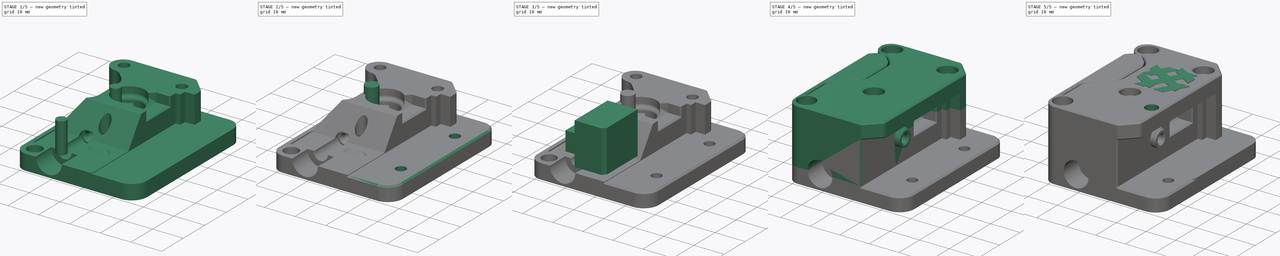
[diagram: build sequence overview — one tinted view per stage of 5, left to right]
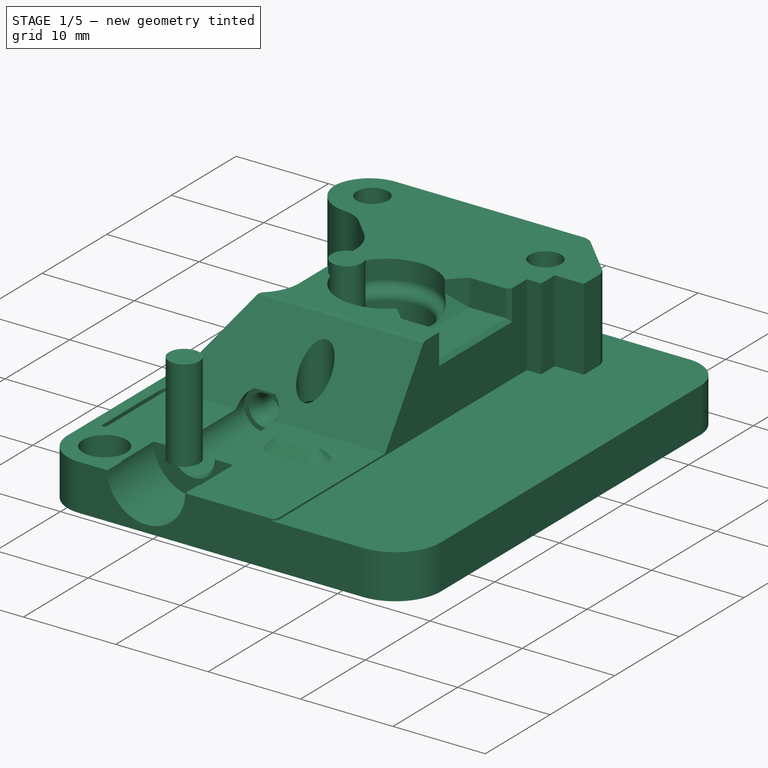
[diagram: stage 1 of 5 — iso view after this stage's code; geometry added in this stage tinted green]
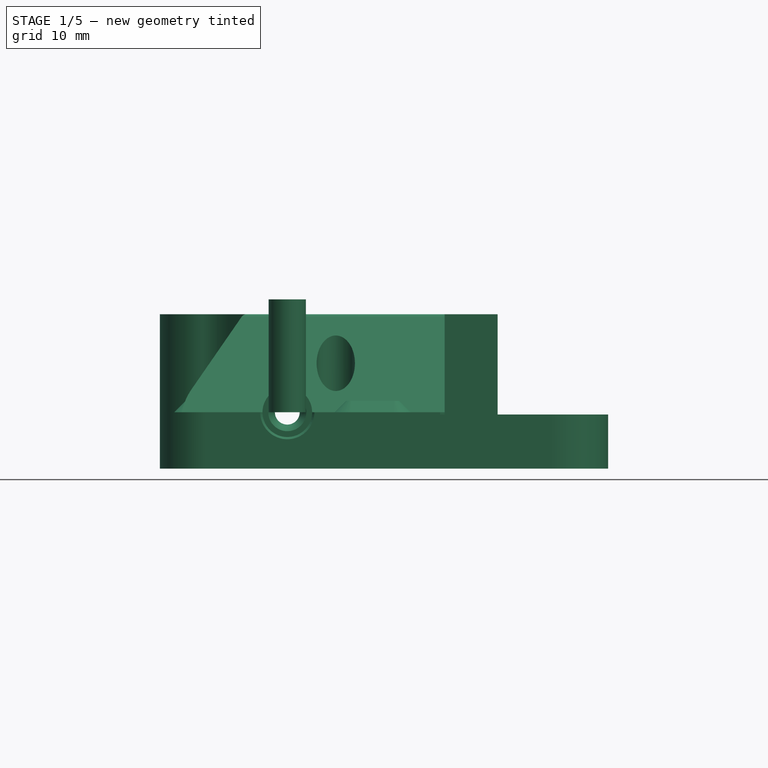
[diagram: stage 1 of 5 — front view after this stage's code; geometry added in this stage tinted green]
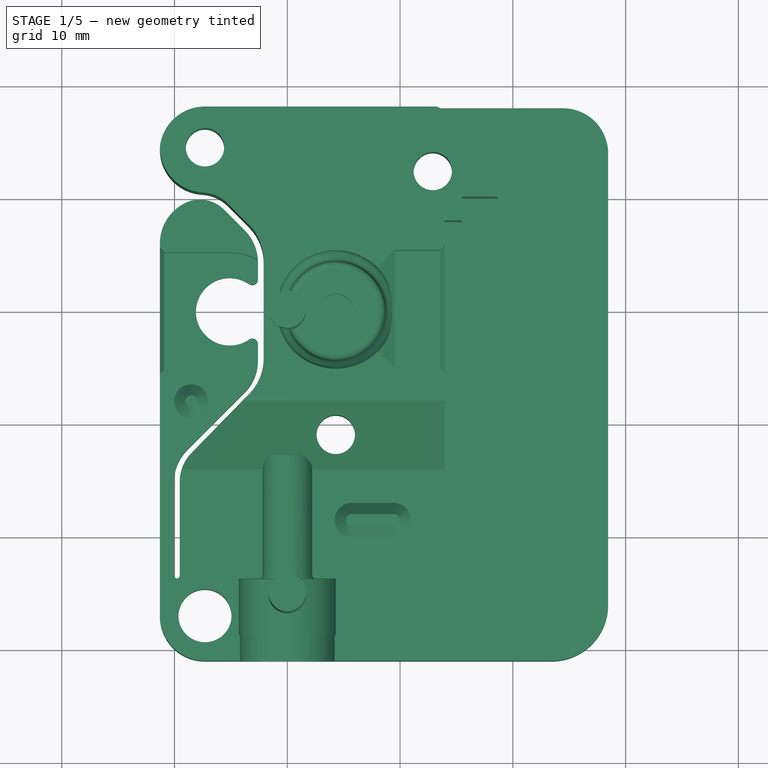
[diagram: stage 1 of 5 — top view after this stage's code; geometry added in this stage tinted green]
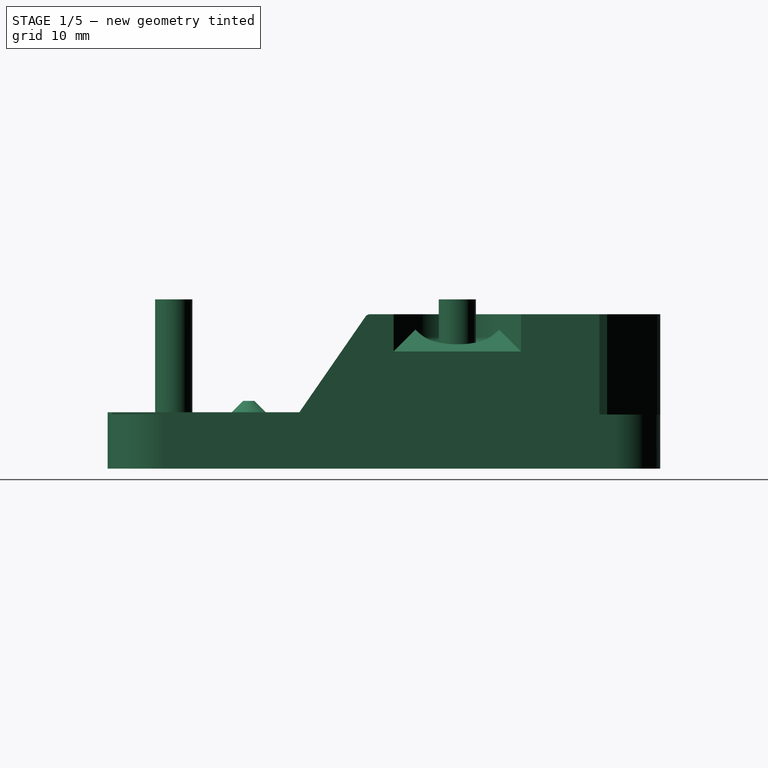
[diagram: stage 1 of 5 — right view after this stage's code; geometry added in this stage tinted green]
FCSTD DOCUMENT  (FreeCAD 2023.1102R14555 (Git shallow))
Label: ERCF_sensor_faceRemoved_safetysave
License: All rights reserved
objects: Part::Feature×21, App::Part×19, App::Link×11, Part::Chamfer×5, Sketcher::SketchObject×4, Part::Cylinder×4, Part::FeaturePython×3, Part::Cut×3, PartDesign::Pad×2, Part::Box×2, Part::Refine×2, Part::Extrusion×2, Part::MultiFuse×2, App::DocumentObjectGroup×1, Part::SubShapeBinder×1, PartDesign::Body×1, Part::Fuse×1, Part::Fillet×1
note: 62 computed .brp shape members not serialized (recipe doc carries the construction recipe); baked Part::Feature solids carry a one-line shape summary decoded from their .brp

FEATURE [Part::Feature] Defeatured
  InvalidShape = false
  TreeRank = 350
  ValidateShape = false
FEATURE [Part::Feature] Defeatured001
  InvalidShape = false
  TreeRank = 351
  ValidateShape = false
FEATURE [Part::Feature] Defeatured002
  InvalidShape = false
  TreeRank = 352
  ValidateShape = false
FEATURE [Part::Feature] Defeatured003
  InvalidShape = false
  TreeRank = 353
  ValidateShape = false
FEATURE [Part::Box] Box001  label="Cube001"
  AttacherType = Attacher::AttachEngine3D
  Height = 4.8
  InvalidShape = false
  Length = 10
  Placement = pos=(18.45,-31,-5) rot=(0,0,1;0rad)
  TreeRank = 354
  ValidateShape = false
  Width = 16
FEATURE [Part::Feature] Defeatured004
  InvalidShape = false
  TreeRank = 355
  ValidateShape = false
FEATURE [Part::MultiFuse] Fusion001
  InvalidShape = false
  Refine = true
  Shapes = -> [Defeatured004,Box001]
  TreeRank = 356
  ValidateShape = false
FEATURE [Part::Fillet] Fillet
  Base = -> Fusion001
  EdgeLinks = -> Fusion001 [Edge337]
  Edges = 1 edges r=5: [Edge337]
  InvalidShape = false
  TreeRank = 357
  ValidateShape = false
FEATURE [Part::Cylinder] Cylinder
  Angle = 360
  AttacherType = Attacher::AttachEngine3D
  FirstAngle = 0
  Height = 10
  InvalidShape = false
  Radius = 1.65
  SecondAngle = 0
  TreeRank = 358
  ValidateShape = false
FEATURE [Part::Cylinder] Cylinder001
  Angle = 360
  AttacherType = Attacher::AttachEngine3D
  FirstAngle = 0
  Height = 10
  InvalidShape = false
  Placement = pos=(0,-25.14,0) rot=(0,0,1;0rad)
  Radius = 1.65
  SecondAngle = 0
  TreeRank = 362
  ValidateShape = false
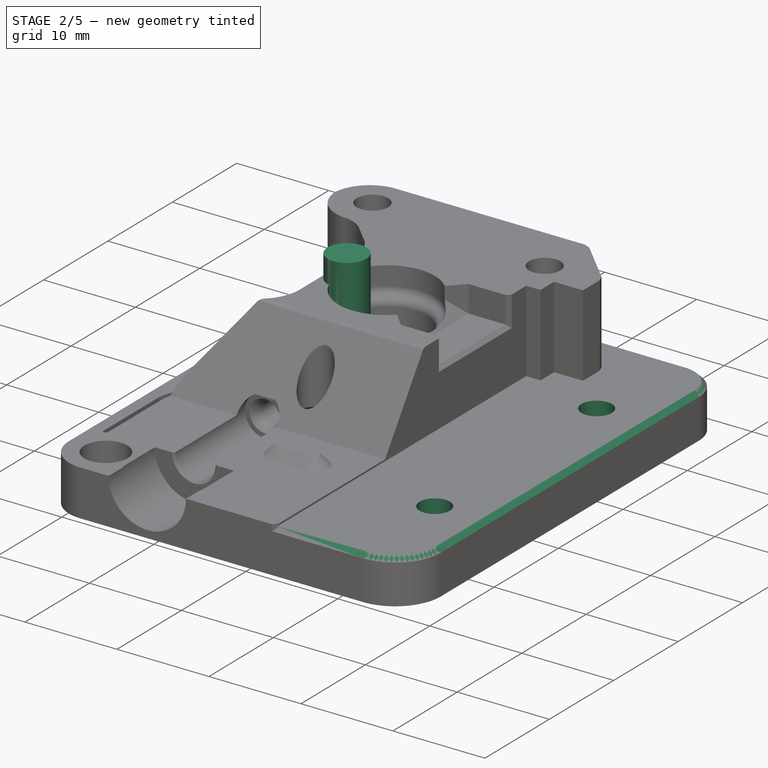
[diagram: stage 2 of 5 — iso view after this stage's code; geometry added in this stage tinted green]
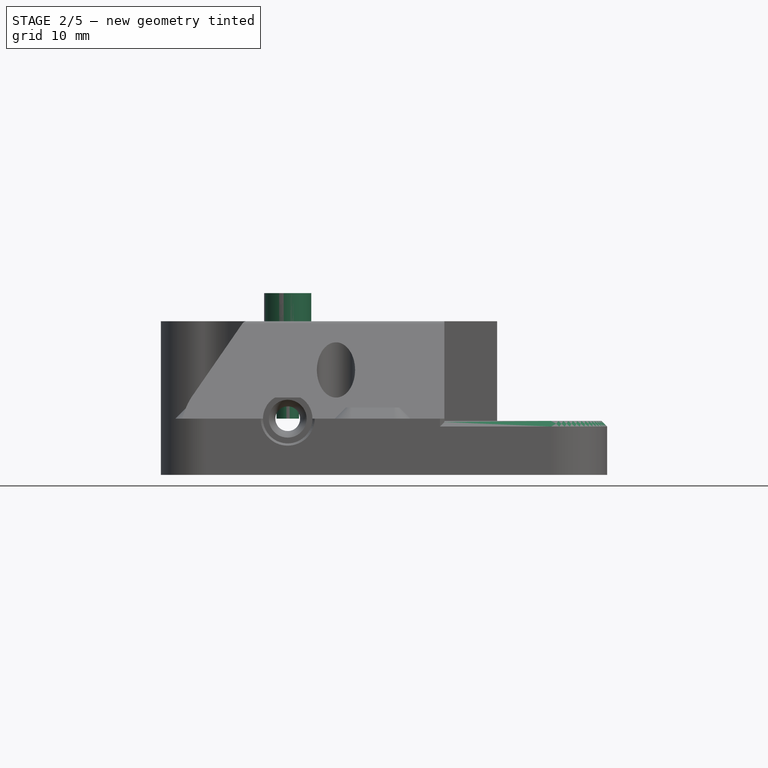
[diagram: stage 2 of 5 — front view after this stage's code; geometry added in this stage tinted green]
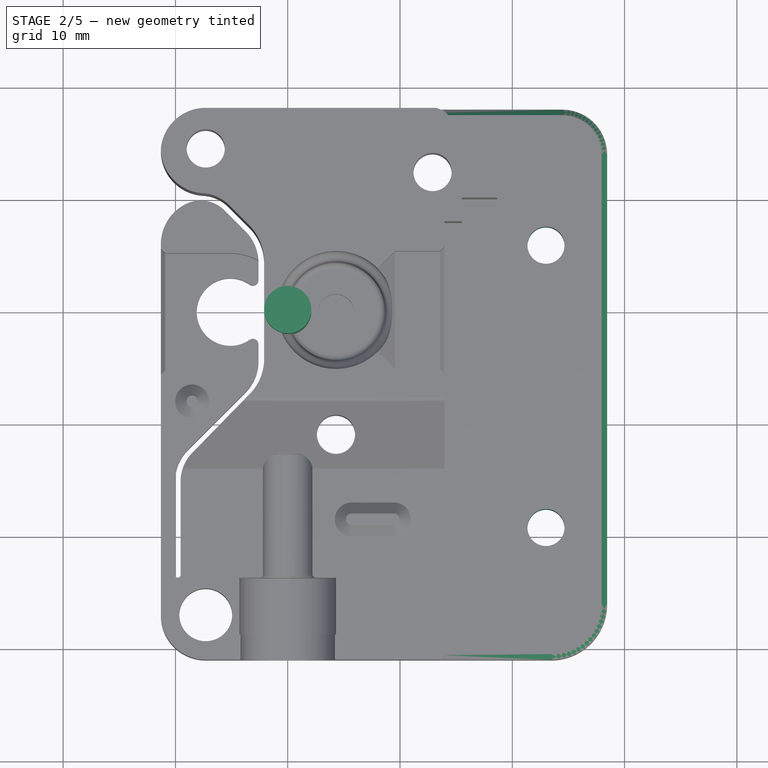
[diagram: stage 2 of 5 — top view after this stage's code; geometry added in this stage tinted green]
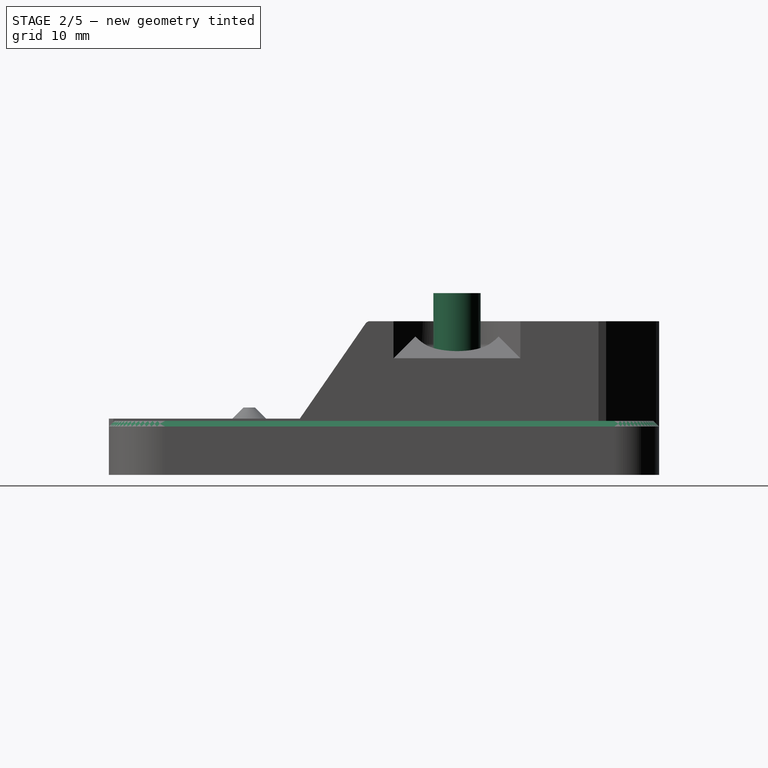
[diagram: stage 2 of 5 — right view after this stage's code; geometry added in this stage tinted green]
FEATURE [App::Part] Part017
  ClaimAllChildren = false
  ExportMode = 1
  Group = -> [Cylinder,Cylinder001]
  Origin = -> Origin018
  Placement = pos=(23,5.92,-7.03) rot=(0,0,1;0rad)
  TreeRank = 361
  _ExportChildren = -> [Cylinder,Cylinder001]
  _GroupVersion = 1
FEATURE [Part::Cut] Cut002  label="Cut003"
  Base = -> Fillet
  InvalidShape = false
  Tool = -> Part017
  TreeRank = 363
  ValidateShape = false
FEATURE [Part::Chamfer] Chamfer001  label="Printability"
  Base = -> Cut002
  EdgeLinks = -> Cut002 [Edge308,Edge310]
  Edges = 2 edges r=0.6: [Edge308,Edge310]
  InvalidShape = false
  TreeRank = 393
  ValidateShape = false
FEATURE [Part::Cylinder] Cylinder003
  Angle = 360
  AttacherType = Attacher::AttachEngine3D
  FirstAngle = 0
  Height = 10
  InvalidShape = false
  Radius = 1
  SecondAngle = 0
  TreeRank = 384
  ValidateShape = false
FEATURE [Part::Cylinder] Cylinder004
  Angle = 360
  AttacherType = Attacher::AttachEngine3D
  FirstAngle = 0
  Height = 10
  InvalidShape = false
  Placement = pos=(0,0,1.177) rot=(0,0,1;0rad)
  Radius = 2.1
  SecondAngle = 0
  TreeRank = 386
  ValidateShape = false
FEATURE [Part::Chamfer] Chamfer002
  Base = -> Chamfer001
  EdgeLinks = -> Chamfer001 [Edge37,Edge106,Edge107,Edge109,Edge110]
  Edges = 5 edges r=0.5: [Edge37,Edge106,Edge107,Edge109,Edge110]
  InvalidShape = false
  TreeRank = 394
  ValidateShape = false
FEATURE [Part::Feature] Defeatured005
  InvalidShape = false
  TreeRank = 397
  ValidateShape = false
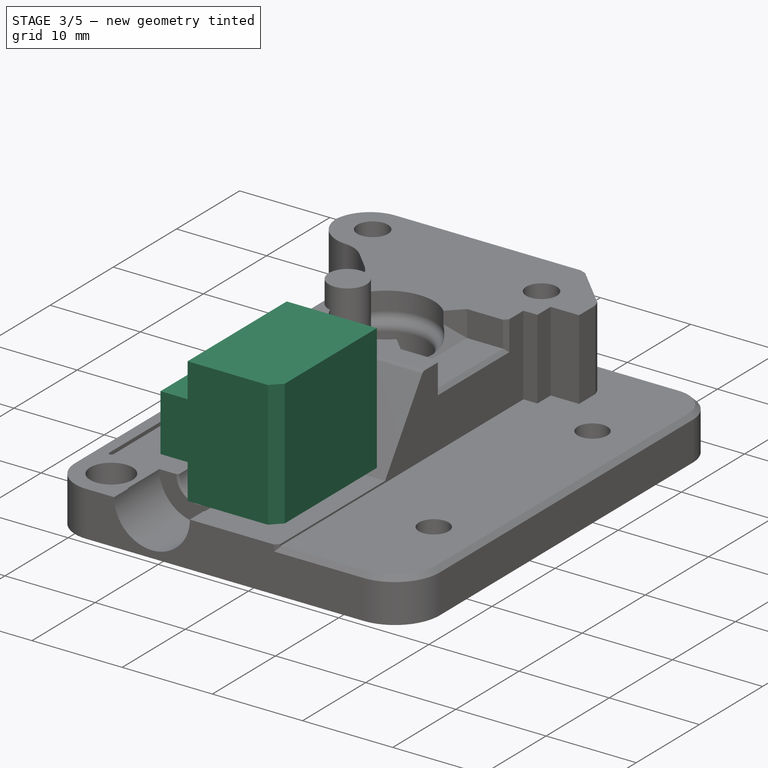
[diagram: stage 3 of 5 — iso view after this stage's code; geometry added in this stage tinted green]
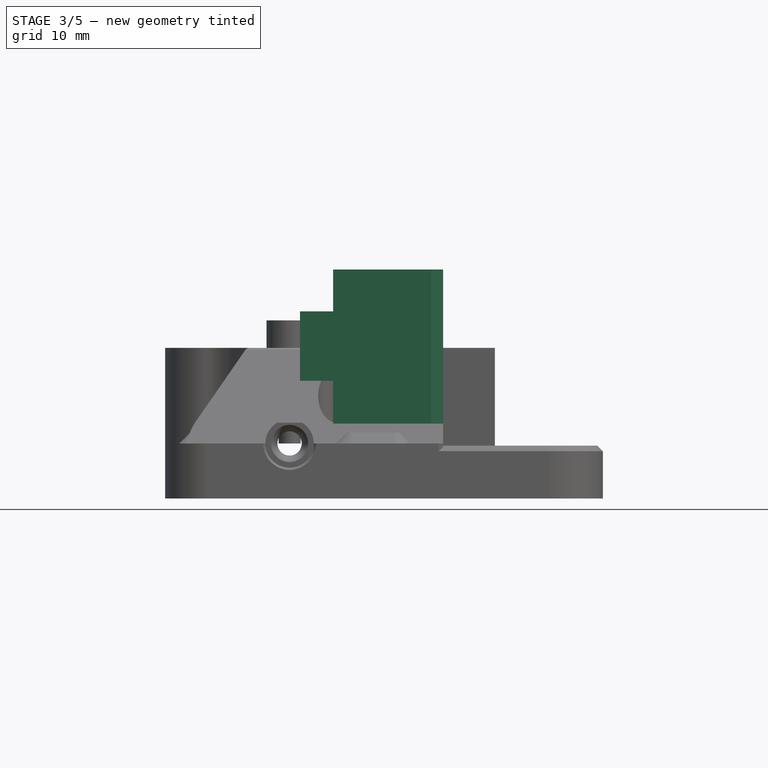
[diagram: stage 3 of 5 — front view after this stage's code; geometry added in this stage tinted green]
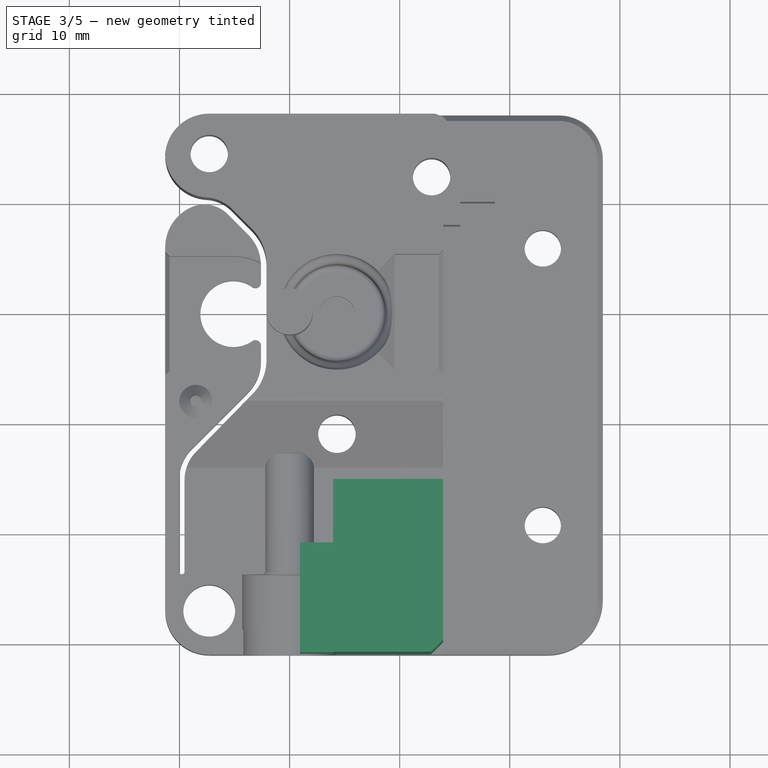
[diagram: stage 3 of 5 — top view after this stage's code; geometry added in this stage tinted green]
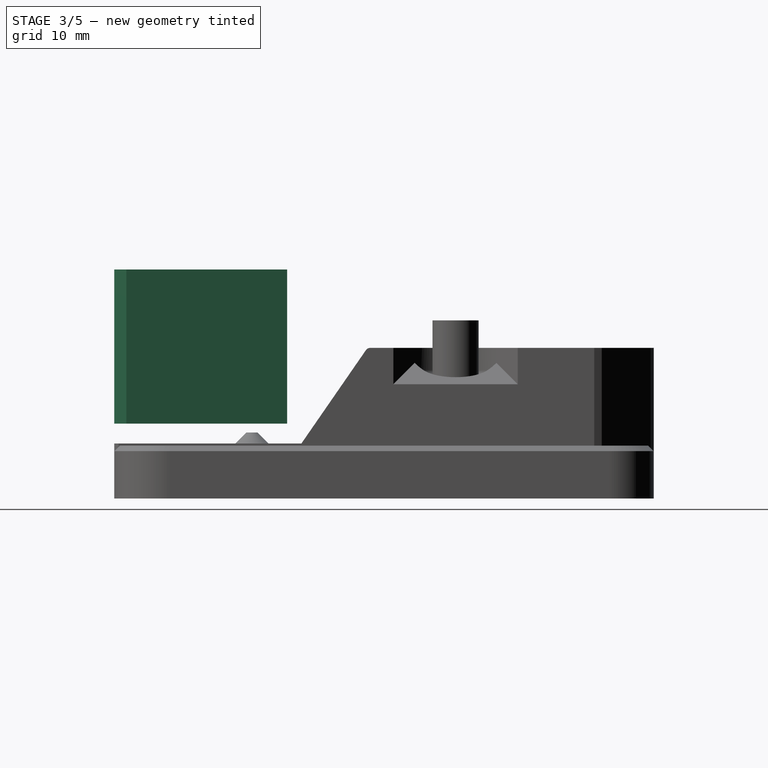
[diagram: stage 3 of 5 — right view after this stage's code; geometry added in this stage tinted green]
FEATURE [Part::SubShapeBinder] Import  label="Import(COMPOUND.1)"
  BindCopyOnChange = 0
  BindMode = 0
  ClaimChildren = false
  Context = -> Body [Import.]
  EdgeTolerance = 1e-06
  FillStyle = 0
  Fuse = false
  InvalidShape = false
  MakeFace = false
  MergeEdges = true
  OffsetFill = false
  OffsetIntersection = false
  OffsetJoinType = 0
  OffsetOpenResult = false
  Outline = false
  PartialLoad = false
  Relative = true
  SplitEdges = false
  Support = -> [Compound002_child1]
  TightBound = false
  TreeRank = 311
  ValidateShape = false
  _Version = 8
FEATURE [Sketcher::SketchObject] Sketch
  ArcFitTolerance = 1e-06
  AttachmentSupport = -> [Import]
  ExternalBSplineMaxDegree = 5
  ExternalBSplineTolerance = 0.0001
  ExternalGeometry = -> [Import]
  FullyConstrained = true
  InternalTolerance = 1e-06
  InvalidShape = false
  MakeInternals = false
  MapMode = 5
  Placement = pos=(13.95,-8e-16,0) rot=(0.57735,0.57735,0.57735;2.0944rad)
  Support = -> [Import]
  TreeRank = 312
  ValidateShape = false
  sketch-geometry (4):
    g0: LineSegment StartX=-31 StartY=15.8 StartZ=0 EndX=-15.3 EndY=15.8 EndZ=0
    g1: LineSegment StartX=-15.3 StartY=15.8 StartZ=0 EndX=-15.3 EndY=1.8 EndZ=0
    g2: LineSegment StartX=-15.3 StartY=1.8 StartZ=0 EndX=-31 EndY=1.8 EndZ=0
    g3: LineSegment StartX=-31 StartY=1.8 StartZ=0 EndX=-31 EndY=15.8 EndZ=0
  constraints (12):
    c: Coincident(g0,g1)
    c: Coincident(g1,g2)
    c: Coincident(g2,g3)
    c: Coincident(g3,g0)
    c: Horizontal(g0)
    c: Horizontal(g2)
    c: Vertical(g1)
    c: Vertical(g3)
    c: DistanceX(g0,g0) = 15.7
    c: DistanceY(g1,g1) = 14
    c: DistanceX(g1,g-1) = 15.3
    c: DistanceY(g-1,g1) = 1.8
FEATURE [PartDesign::Pad] Pad
  AddSubType = 0
  AlongSketchNormal = false
  AutoTaperInnerAngle = true
  CheckUpToFaceLimits = true
  ClaimChildren = false
  Direction = (1,0,0)
  Fit = 0
  FitJoin = 0
  InnerFit = 0
  InnerFitJoin = 0
  InvalidShape = false
  Length = 10
  Length2 = 10
  Linearize = true
  NewSolid = false
  Profile = -> Sketch
  ReferenceAxis = -> Sketch [N_Axis]
  Reversed = true
  Suppress = false
  TaperInnerAngle = 0
  TaperInnerAngleRev = 0
  TreeRank = 313
  Type = 0
  ValidateShape = false
  _ProfileBasedVersion = 1
FEATURE [Sketcher::SketchObject] Sketch001
  ArcFitTolerance = 1e-06
  AttachmentSupport = -> [Import]
  ExternalBSplineMaxDegree = 5
  ExternalBSplineTolerance = 0.0001
  FullyConstrained = true
  InternalTolerance = 1e-06
  InvalidShape = false
  MakeInternals = false
  MapMode = 5
  Placement = pos=(13.95,-8e-16,0) rot=(0.57735,0.57735,0.57735;2.0944rad)
  Support = -> [Import]
  TreeRank = 314
  ValidateShape = false
  sketch-geometry (4):
    g0: LineSegment StartX=-31 StartY=12 StartZ=0 EndX=-21 EndY=12 EndZ=0
    g1: LineSegment StartX=-21 StartY=12 StartZ=0 EndX=-21 EndY=5.7 EndZ=0
    g2: LineSegment StartX=-21 StartY=5.7 StartZ=0 EndX=-31 EndY=5.7 EndZ=0
    g3: LineSegment StartX=-31 StartY=5.7 StartZ=0 EndX=-31 EndY=12 EndZ=0
  constraints (12):
    c: Coincident(g0,g1)
    c: Coincident(g1,g2)
    c: Coincident(g2,g3)
    c: Coincident(g3,g0)
    c: Horizontal(g0)
    c: Horizontal(g2)
    c: Vertical(g1)
    c: Vertical(g3)
    c: DistanceX(g2,g-1) = 31
    c: DistanceY(g-1,g2) = 5.7
    c: DistanceY(g1,g1) = 6.3
    c: DistanceX(g0,g0) = 10
FEATURE [PartDesign::Pad] Pad001
  AddSubType = 0
  AlongSketchNormal = false
  AutoTaperInnerAngle = true
  BaseFeature = -> Pad
  CheckUpToFaceLimits = true
  ClaimChildren = false
  Direction = (1,0,0)
  Fit = 0
  FitJoin = 0
  InnerFit = 0
  InnerFitJoin = 0
  InvalidShape = false
  Length = 13
  Length2 = 10
  Linearize = true
  NewSolid = false
  Profile = -> Sketch001
  ReferenceAxis = -> Sketch001 [N_Axis]
  Reversed = true
  Suppress = false
  TaperInnerAngle = 0
  TaperInnerAngleRev = 0
  TreeRank = 341
  Type = 0
  ValidateShape = false
  _ProfileBasedVersion = 1
  _Siblings = -> [Pad]
FEATURE [Part::Refine] Refined  label="Body001"
  InvalidShape = false
  Source = -> Body
  TreeRank = 322
  ValidateShape = false
FEATURE [Part::Chamfer] Chamfer
  Base = -> Refined
  EdgeLinks = -> Refined [Edge24]
  Edges = 1 edges r=1.1: [Edge24]
  InvalidShape = false
  TreeRank = 323
  ValidateShape = false
FEATURE [Part::MultiFuse] Fusion002
  InvalidShape = false
  Shapes = -> [Cylinder003,Cylinder004]
  TreeRank = 389
  ValidateShape = false
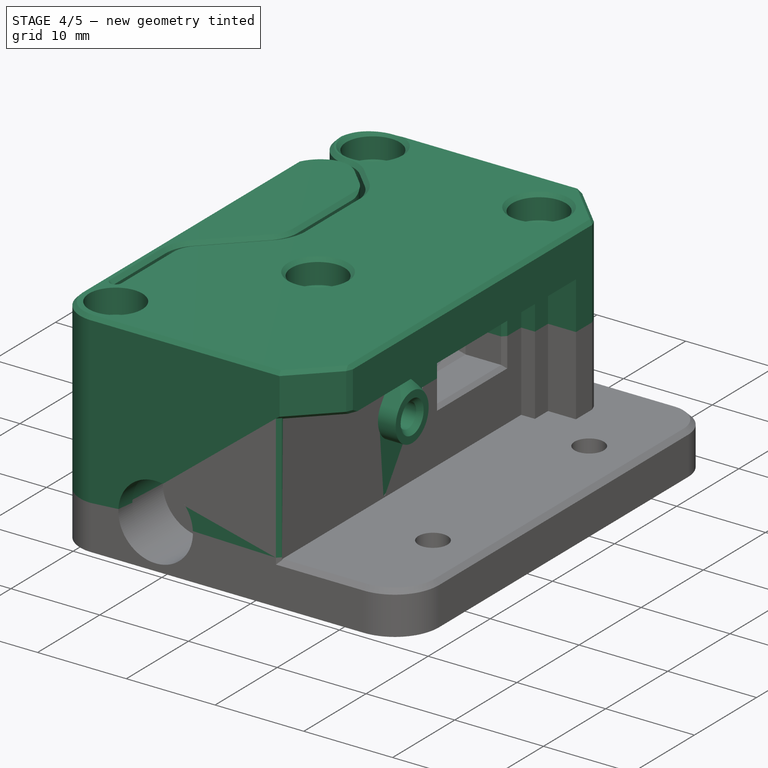
[diagram: stage 4 of 5 — iso view after this stage's code; geometry added in this stage tinted green]
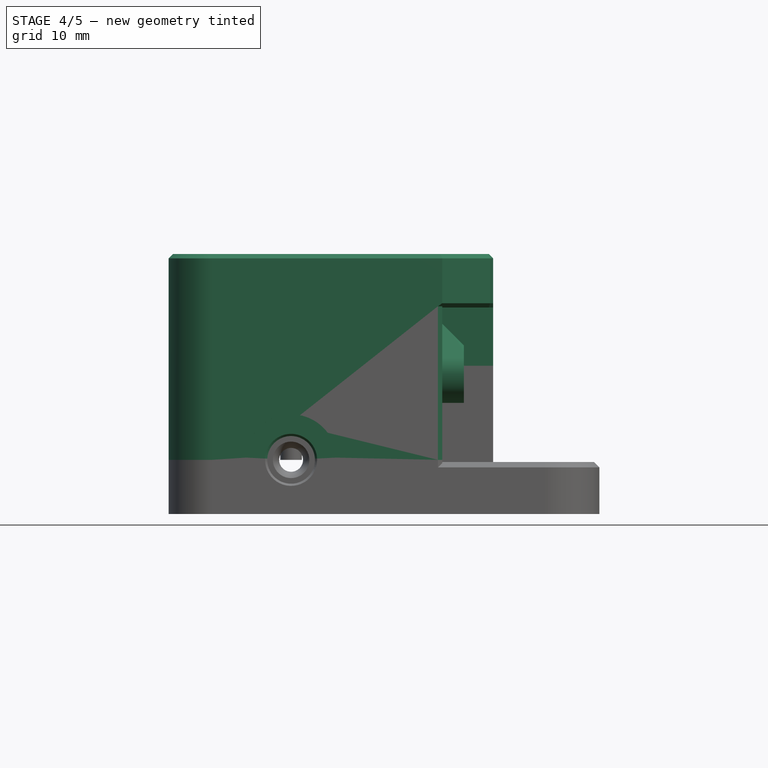
[diagram: stage 4 of 5 — front view after this stage's code; geometry added in this stage tinted green]
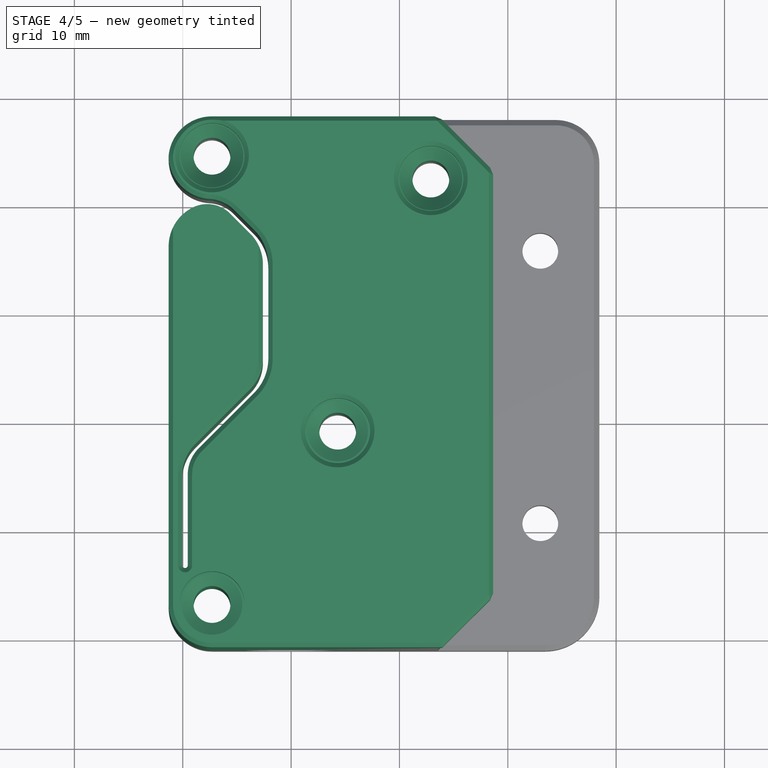
[diagram: stage 4 of 5 — top view after this stage's code; geometry added in this stage tinted green]
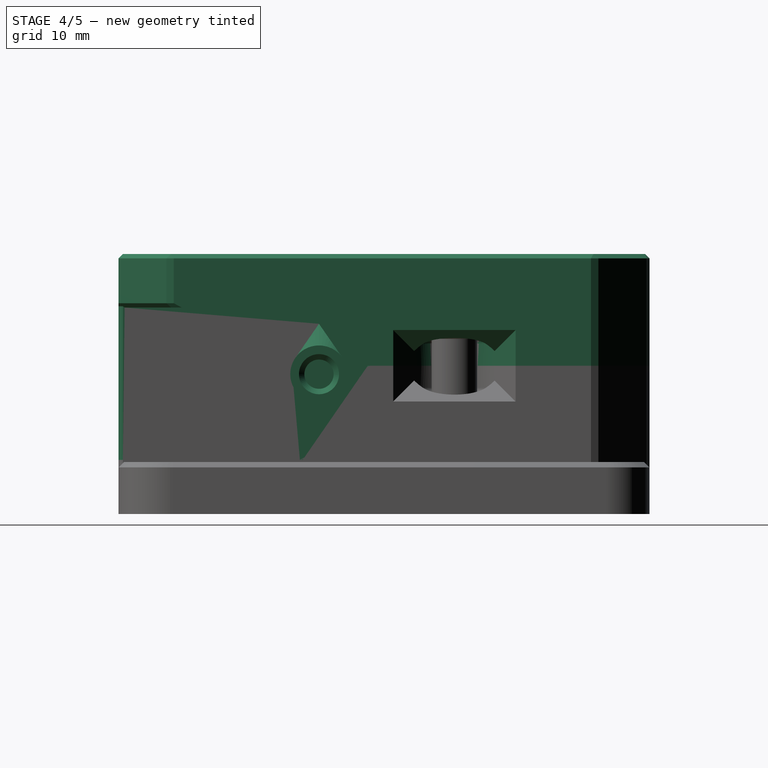
[diagram: stage 4 of 5 — right view after this stage's code; geometry added in this stage tinted green]
FEATURE [App::DocumentObjectGroup] GrExplode_Compound002  label="Exploded COMPOUND"
  ClaimAllChildren = true
  ExportMode = 1
  Group = -> [Compound002_child0]
  TreeRank = 300
  _GroupVersion = 1
FEATURE [Part::FeaturePython] Compound002_child1  label="COMPOUND.1"  # WARN: FeaturePython — macro-defined, semantics opaque (R4)
  Base = -> Compound002
  FilterType = 1
  InvalidShape = false
  Invert = false
  OverrideMaxVal = 0
  TreeRank = 319
  ValidateShape = false
  WindowFrom = 80
  WindowTo = 100
  items = 1
FEATURE [PartDesign::Body] Body
  AutoGroupSolids = true
  ClaimAllChildren = false
  ExportMode = 0
  Group = -> [Import,Sketch,Pad,Sketch001,Pad001]
  InvalidShape = false
  Origin = -> Origin016
  SingleSolid = true
  Tip = -> Pad001
  TreeRank = 320
  ValidateShape = false
  _ExportChildren = -> [Import,Pad001]
  _GroupVersion = 1
FEATURE [Part::Box] Box  label="Cube"
  AttacherType = Attacher::AttachEngine3D
  Height = 20
  InvalidShape = false
  Length = 15
  Placement = pos=(0,-41,0) rot=(0,0,1;0rad)
  TreeRank = 321
  ValidateShape = false
  Width = 10
FEATURE [Part::Fuse] Fusion
  Base = -> Compound002_child1
  InvalidShape = false
  Tool = -> Chamfer
  TreeRank = 324
  ValidateShape = false
FEATURE [Part::Cut] Cut
  Base = -> Fusion
  InvalidShape = false
  Tool = -> Box
  TreeRank = 325
  ValidateShape = false
FEATURE [Part::Chamfer] Chamfer003
  Base = -> Refined001
  EdgeLinks = -> Refined001 [Edge36,Edge204]
  Edges = 2 edges r=1.2: [Edge36,Edge204]
  InvalidShape = false
  TreeRank = 387
  ValidateShape = false
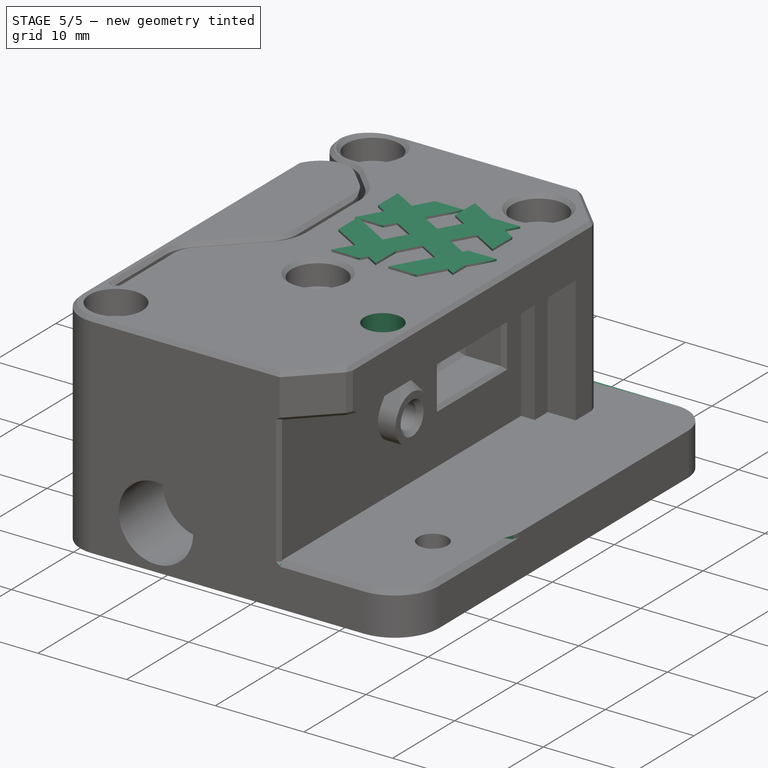
[diagram: stage 5 of 5 — iso view after this stage's code; geometry added in this stage tinted green]
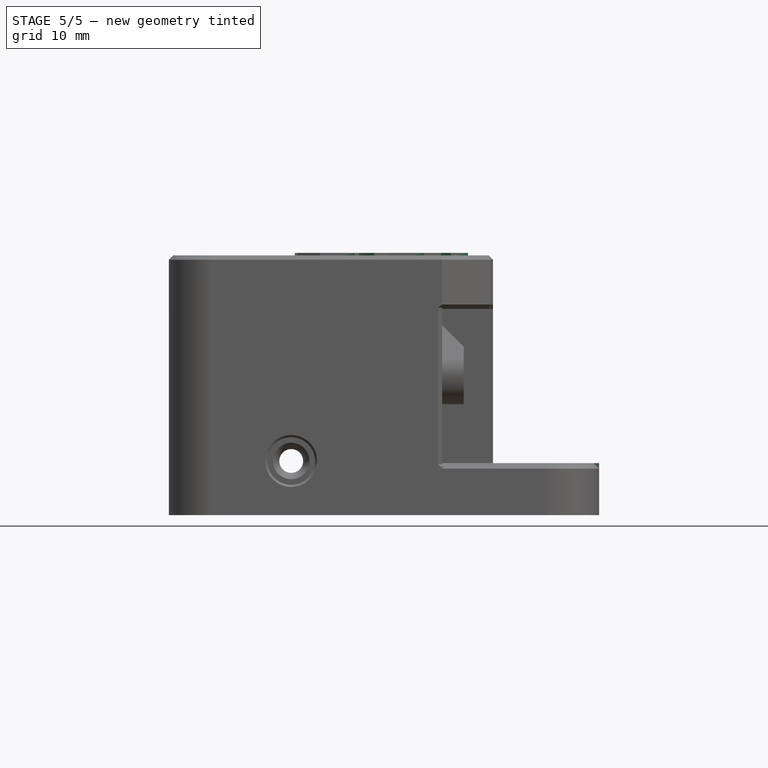
[diagram: stage 5 of 5 — front view after this stage's code; geometry added in this stage tinted green]
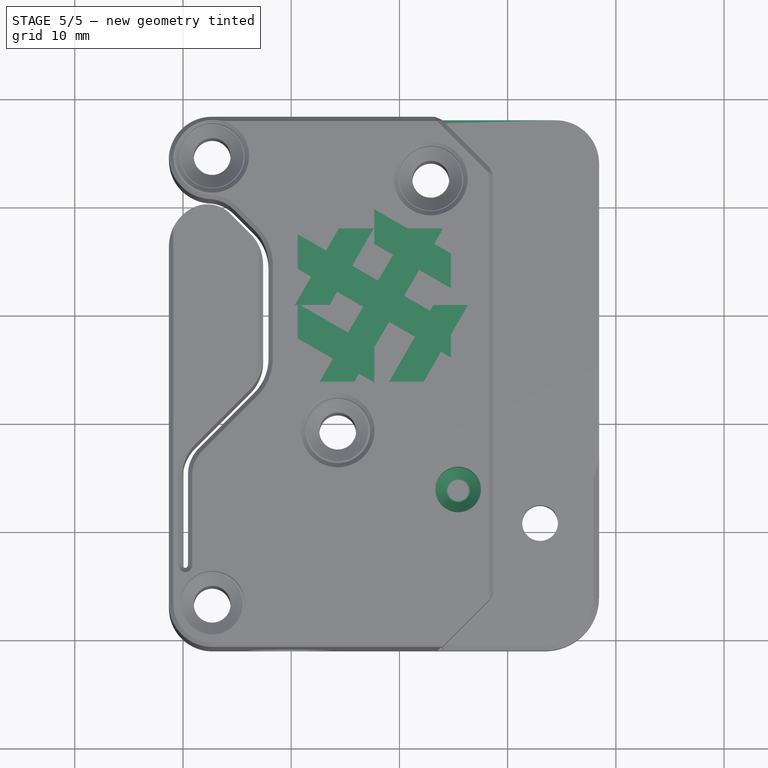
[diagram: stage 5 of 5 — top view after this stage's code; geometry added in this stage tinted green]
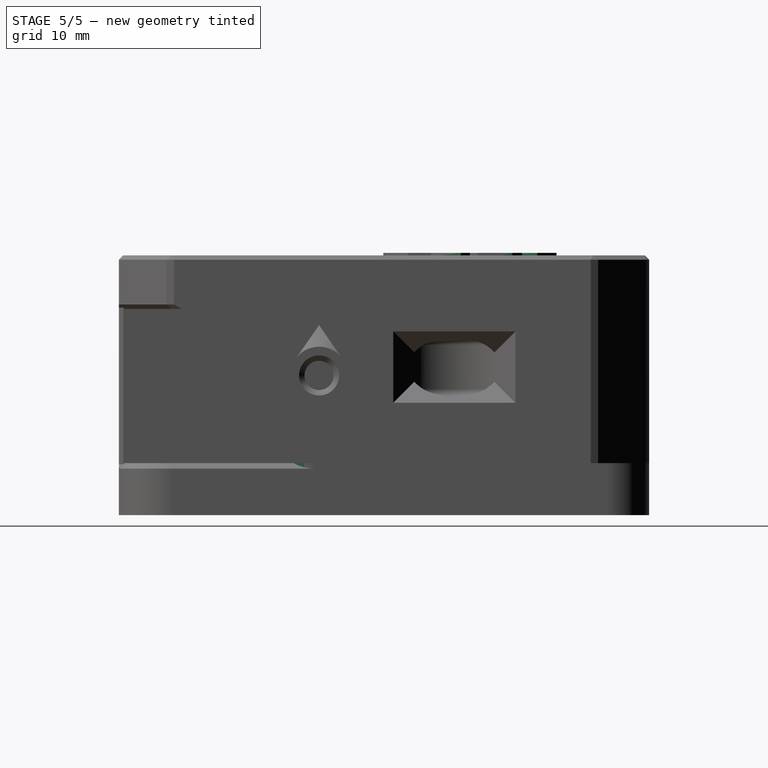
[diagram: stage 5 of 5 — right view after this stage's code; geometry added in this stage tinted green]
FEATURE [Part::Feature] Compound  label="TCRT5000_PCB v3"
  InvalidShape = false
  Placement = pos=(15.95,10.04,0.082107) rot=(0.57735,-0.57735,0.57735;4.18879rad)
  TreeRank = 62
  ValidateShape = false
FEATURE [Part::Feature] Solid  label="M3x16 SHCS (2)^Fan Assembly (1)_X Carriage (2)"
  InvalidShape = false
  Placement = pos=(-27.425,-38.9929,-1.29992) rot=(-0.707107,0.707107,0;3.14159rad)
  TreeRank = 63
  ValidateShape = false
FEATURE [App::Part] Part  label="M3x8SHCS v1"
  ClaimAllChildren = false
  ExportMode = 1
  Group = -> [Solid]
  Origin = -> Origin
  Placement = pos=(-21.1501,14.925,46.9) rot=(0.57735,0.57735,0.577351;2.0944rad)
  TreeRank = 65
  _ExportChildren = -> [Solid]
  _GroupVersion = 1
FEATURE [Part::Feature] Solid001  label="623ZZ v1"
  InvalidShape = false
  Placement = pos=(-5.1,8.9e-15,0.1) rot=(0,1,0;1.5708rad)
  TreeRank = 66
  ValidateShape = false
FEATURE [Part::Feature] Solid002  label="M3x16 SHCS (2)^Fan Assembly (1)_X Carriage (2) (1)"
  InvalidShape = false
  Placement = pos=(-25.925,-90.05,25.4501) rot=(0.57735,0.57735,-0.57735;2.0944rad)
  TreeRank = 67
  ValidateShape = false
FEATURE [App::Part] Part001  label="M3x20SHCS v1"
  ClaimAllChildren = false
  ExportMode = 1
  Group = -> [Solid002]
  Origin = -> Origin001
  Placement = pos=(-32.7501,40.3098,66.3) rot=(0.57735,0.57735,0.577351;2.0944rad)
  TreeRank = 69
  _ExportChildren = -> [Solid002]
  _GroupVersion = 1
FEATURE [App::Link] Link  label="M3x16 SHCS (2)^Fan Assembly (1)_X Carriage (2) (1)"
  AutoLinkLabel = true
  AutoPlacement = true
  LinkPlacement = pos=(-41.925,-94.05,13.8501) rot=(0.57735,0.57735,-0.57735;2.0944rad)
  LinkedObject = -> Solid002
  Placement = pos=(-41.925,-94.05,13.8501) rot=(0.57735,0.57735,-0.57735;2.0944rad)
  SyncGroupVisibility = false
  TreeRank = 70
  _LinkVersion = 1
FEATURE [App::Part] Part002  label="M3x20SHCS v1 (1)"
  ClaimAllChildren = false
  ExportMode = 1
  Group = -> [Link]
  Origin = -> Origin002
  Placement = pos=(-21.1501,14.925,69.9) rot=(0.57735,0.57735,0.577351;2.0944rad)
  TreeRank = 72
  _ExportChildren = -> [Link]
  _GroupVersion = 1
FEATURE [App::Link] Link001  label="M3x16 SHCS (2)^Fan Assembly (1)_X Carriage (2) (1)"
  AutoLinkLabel = true
  AutoPlacement = true
  LinkPlacement = pos=(-14.925,-31.8,16.0501) rot=(-0.57735,0.57735,0.577351;2.0944rad)
  LinkedObject = -> Solid002
  Placement = pos=(-14.925,-31.8,16.0501) rot=(-0.57735,0.57735,0.577351;2.0944rad)
  SyncGroupVisibility = false
  TreeRank = 73
  _LinkVersion = 1
FEATURE [App::Part] Part003  label="M3x20SHCS v1 (2)"
  ClaimAllChildren = false
  ExportMode = 1
  Group = -> [Link001]
  Origin = -> Origin003
  Placement = pos=(-21.1501,14.925,69.9) rot=(0.57735,0.57735,0.577351;2.0944rad)
  TreeRank = 75
  _ExportChildren = -> [Link001]
  _GroupVersion = 1
FEATURE [Part::Feature] Solid003  label="M3 Threaded Insert (1)^VORON Clockwork_X Carriage"
  InvalidShape = false
  Placement = pos=(-41.925,-63.05,13.8501) rot=(-0.57735,0.57735,-0.57735;4.18879rad)
  TreeRank = 76
  ValidateShape = false
FEATURE [App::Part] Part004  label="M3 Threaded Insert v1 (1)"
  ClaimAllChildren = false
  ExportMode = 1
  Group = -> [Solid003]
  Origin = -> Origin004
  Placement = pos=(-21.1501,56.3098,61.9) rot=(0.57735,0.57735,0.577351;2.0944rad)
  TreeRank = 78
  _ExportChildren = -> [Solid003]
  _GroupVersion = 1
FEATURE [App::Link] Link002  label="M3 Threaded Insert (1)^VORON Clockwork_X Carriage"
  AutoLinkLabel = true
  AutoPlacement = true
  LinkPlacement = pos=(-25.925,-61.05,25.4501) rot=(-0.57735,0.57735,-0.57735;4.18879rad)
  LinkedObject = -> Solid003
  Placement = pos=(-25.925,-61.05,25.4501) rot=(-0.57735,0.57735,-0.57735;4.18879rad)
  SyncGroupVisibility = false
  TreeRank = 79
  _LinkVersion = 1
FEATURE [App::Part] Part005  label="M3 Threaded Insert v1 (2)"
  ClaimAllChildren = false
  ExportMode = 1
  Group = -> [Link002]
  Origin = -> Origin005
  Placement = pos=(-12.5512,38.2056,59.9) rot=(0.57735,0.57735,0.577351;2.0944rad)
  TreeRank = 81
  _ExportChildren = -> [Link002]
  _GroupVersion = 1
FEATURE [Part::Feature] Solid004  label="Main body (1)"
  InvalidShape = false
  Placement = pos=(129.306,67.1521,-268.62) rot=(-0.577292,0.57738,0.577379;2.09448rad)
  TreeRank = 82
  ValidateShape = false
FEATURE [Part::Feature] Solid005  label="Release clip (1)"
  InvalidShape = false
  Placement = pos=(129.306,67.1521,-268.62) rot=(-0.577292,0.57738,0.577379;2.09448rad)
  TreeRank = 83
  ValidateShape = false
FEATURE [Part::Feature] Solid006  label="Seal (1)"
  InvalidShape = false
  Placement = pos=(129.306,67.1521,-268.62) rot=(-0.577292,0.57738,0.577379;2.09448rad)
  TreeRank = 84
  ValidateShape = false
FEATURE [App::Part] Part006  label="EASUN ECAS04 v3 (6)"
  ClaimAllChildren = false
  ExportMode = 1
  Group = -> [Solid004,Solid005,Solid006]
  Origin = -> Origin006
  Placement = pos=(-9.901,-4.35,20.2073) rot=(0,0,1;0rad)
  TreeRank = 86
  _ExportChildren = -> [Solid004,Solid005,Solid006]
  _GroupVersion = 1
FEATURE [App::Part] Part007  label="ECAS v1 (6)"
  ClaimAllChildren = false
  ExportMode = 1
  Group = -> [Part006]
  Origin = -> Origin007
  Placement = pos=(119.442,35.9023,248.395) rot=(7.6e-05,0,1;3.14159rad)
  TreeRank = 88
  _ExportChildren = -> [Part006]
  _GroupVersion = 1
FEATURE [Part::Feature] Solid007  label="stift 3 x 20 (1)^Direct_Drivegear_without_setscrew (1)_Guidler_VORON 
Clockwork_X Carriage (1)"
  InvalidShape = false
  Placement = pos=(-4.52e-14,4.44e-14,-7.25) rot=(0.762006,0.457901,0.457901;1.83931rad)
  TreeRank = 89
  ValidateShape = false
FEATURE [Part::Feature] Compound001  label="K3x5x7 Needlebearing (1)^Direct_Drivegear_without_setscrew (1)_Guidle
r_VORON Clockwork_X Carriage (1)"
  InvalidShape = false
  Placement = pos=(-9.7e-15,4e-14,7.95) rot=(0,0,1;1.08218rad)
  TreeRank = 90
  ValidateShape = false
FEATURE [Part::Feature] Solid008  label="Direct_Drivegear_without_setscrew (1)-39^Direct_Drivegear_without_set
screw (1)_Guidler_VORON Clockwork_X Carriage (1)"
  InvalidShape = false
  Placement = pos=(-2.3e-14,2.66e-14,1.45) rot=(0,0,-1;0.488613rad)
  TreeRank = 91
  ValidateShape = false
FEATURE [App::Link] Link003  label="K3x5x7 Needlebearing (1)^Direct_Drivegear_without_setscrew (1)_Guidle
r_VORON Clockwork_X Carriage (1)"
  AutoLinkLabel = true
  AutoPlacement = true
  LinkPlacement = pos=(-2.3e-14,3.11e-14,0.95) rot=(0,0,1;1.08218rad)
  LinkedObject = -> Compound001
  Placement = pos=(-2.3e-14,3.11e-14,0.95) rot=(0,0,1;1.08218rad)
  SyncGroupVisibility = false
  TreeRank = 92
  _LinkVersion = 1
FEATURE [App::Part] Part008  label="Direct_Drivegear_without_setscrew (1)^Guidler_VORON Clockwork_X Carri
age (6)"
  ClaimAllChildren = false
  ExportMode = 1
  Group = -> [Solid007,Compound001,Solid008,Link003]
  Origin = -> Origin008
  Placement = pos=(-27.6452,43.5916,197.056) rot=(0,0,1;2.25329rad)
  TreeRank = 94
  _ExportChildren = -> [Solid007,Compound001,Solid008,Link003]
  _GroupVersion = 1
FEATURE [App::Part] Part009  label="BondTechDriveGear v6 v1"
  ClaimAllChildren = false
  ExportMode = 1
  Group = -> [Part008]
  Origin = -> Origin009
  Placement = pos=(23.0283,48.1013,205.506) rot=(0.995305,0.096791,0;3.14159rad)
  TreeRank = 96
  _ExportChildren = -> [Part008]
  _GroupVersion = 1
FEATURE [App::Link] Link004  label="Main body (1)"
  AutoLinkLabel = true
  AutoPlacement = true
  LinkPlacement = pos=(129.306,67.1521,-268.62) rot=(-0.577292,0.57738,0.577379;2.09448rad)
  LinkedObject = -> Solid004
  Placement = pos=(129.306,67.1521,-268.62) rot=(-0.577292,0.57738,0.577379;2.09448rad)
  SyncGroupVisibility = false
  TreeRank = 97
  _LinkVersion = 1
FEATURE [App::Link] Link005  label="Release clip (1)"
  AutoLinkLabel = true
  AutoPlacement = true
  LinkPlacement = pos=(129.306,67.1521,-268.62) rot=(-0.577292,0.57738,0.577379;2.09448rad)
  LinkedObject = -> Solid005
  Placement = pos=(129.306,67.1521,-268.62) rot=(-0.577292,0.57738,0.577379;2.09448rad)
  SyncGroupVisibility = false
  TreeRank = 98
  _LinkVersion = 1
FEATURE [App::Link] Link006  label="Seal (1)"
  AutoLinkLabel = true
  AutoPlacement = true
  LinkPlacement = pos=(129.306,67.1521,-268.62) rot=(-0.577292,0.57738,0.577379;2.09448rad)
  LinkedObject = -> Solid006
  Placement = pos=(129.306,67.1521,-268.62) rot=(-0.577292,0.57738,0.577379;2.09448rad)
  SyncGroupVisibility = false
  TreeRank = 99
  _LinkVersion = 1
FEATURE [App::Part] Part010  label="EASUN ECAS04 v3 (6)"
  ClaimAllChildren = false
  ExportMode = 1
  Group = -> [Link004,Link005,Link006]
  Origin = -> Origin010
  Placement = pos=(-9.901,-4.35,20.2073) rot=(0,0,1;0rad)
  TreeRank = 101
  _ExportChildren = -> [Link004,Link005,Link006]
  _GroupVersion = 1
FEATURE [App::Part] Part011  label="ECAS v1 (6)"
  ClaimAllChildren = false
  ExportMode = 1
  Group = -> [Part010]
  Origin = -> Origin011
  Placement = pos=(119.368,-48.902,-248.431) rot=(-1e-06,1,0;3.14174rad)
  TreeRank = 103
  _ExportChildren = -> [Part010]
  _GroupVersion = 1
FEATURE [App::Link] Link007  label="M3x16 SHCS (2)^Fan Assembly (1)_X Carriage (2) (1)"
  AutoLinkLabel = true
  AutoPlacement = true
  LinkPlacement = pos=(-25.925,-90.05,25.4501) rot=(0.57735,0.57735,-0.57735;2.0944rad)
  LinkedObject = -> Solid002
  Placement = pos=(-25.925,-90.05,25.4501) rot=(0.57735,0.57735,-0.57735;2.0944rad)
  SyncGroupVisibility = false
  TreeRank = 104
  _LinkVersion = 1
FEATURE [App::Part] Part012  label="M3x20SHCS v1"
  ClaimAllChildren = false
  ExportMode = 1
  Group = -> [Link007]
  Origin = -> Origin012
  Placement = pos=(-21.1501,14.925,65.665) rot=(0.57735,0.57735,0.577351;2.0944rad)
  TreeRank = 106
  _ExportChildren = -> [Link007]
  _GroupVersion = 1
FEATURE [App::Link] Link008  label="M3 Threaded Insert (1)^VORON Clockwork_X Carriage"
  AutoLinkLabel = true
  AutoPlacement = true
  LinkPlacement = pos=(-41.925,-63.05,13.8501) rot=(-0.57735,0.57735,-0.57735;4.18879rad)
  LinkedObject = -> Solid003
  Placement = pos=(-41.925,-63.05,13.8501) rot=(-0.57735,0.57735,-0.57735;4.18879rad)
  SyncGroupVisibility = false
  TreeRank = 107
  _LinkVersion = 1
FEATURE [App::Part] Part013  label="M3 Threaded Insert v1 (1)"
  ClaimAllChildren = false
  ExportMode = 1
  Group = -> [Link008]
  Origin = -> Origin013
  Placement = pos=(-21.1501,14.925,61.9) rot=(0.57735,0.57735,0.577351;2.0944rad)
  TreeRank = 109
  _ExportChildren = -> [Link008]
  _GroupVersion = 1
FEATURE [App::Link] Link009  label="M3 Threaded Insert v1 (1)"
  AutoLinkLabel = true
  AutoPlacement = true
  LinkPlacement = pos=(-9.55012,30.925,61.9) rot=(0.57735,0.57735,0.577351;2.0944rad)
  LinkedObject = -> Part013
  Placement = pos=(-9.55012,30.925,61.9) rot=(0.57735,0.57735,0.577351;2.0944rad)
  SyncGroupVisibility = false
  TreeRank = 110
  _LinkVersion = 1
FEATURE [App::Link] Link010  label="M3x20SHCS v1"
  AutoLinkLabel = true
  AutoPlacement = true
  LinkPlacement = pos=(-12.5512,38.2056,66.3) rot=(0.57735,0.57735,0.577351;2.0944rad)
  LinkedObject = -> Part012
  Placement = pos=(-12.5512,38.2056,66.3) rot=(0.57735,0.57735,0.577351;2.0944rad)
  SyncGroupVisibility = false
  TreeRank = 111
  _LinkVersion = 1
FEATURE [Part::Feature] Compound002  label="COMPOUND"
  InvalidShape = false
  TreeRank = 112
  ValidateShape = false
FEATURE [App::Part] Part014  label="EncoderCart v20"
  ClaimAllChildren = false
  ExportMode = 1
  Group = -> [Compound,Part,Solid001,Part001,Part002,Part003,Part004,Part005,Part007,Part009,Part011,Part012,Part013,Link009,Link010,Compound002]
  Origin = -> Origin014
  Placement = pos=(-14.9312,-47.1628,21.1861) rot=(-0.57735,-0.57735,-0.577351;2.0944rad)
  TreeRank = 114
  _ExportChildren = -> [Compound,Part,Solid001,Part001,Part002,Part003,Part004,Part005,Part007,Part009,Part011,Part012,Part013,Link009,Link010,Compound002]
  _GroupVersion = 1
FEATURE [App::Part] Part015  label="ERCF Smart Filament Motion Sensor v5"
  ClaimAllChildren = false
  ExportMode = 1
  Group = -> [Part014]
  Origin = -> Origin015
  TreeRank = 116
  _ExportChildren = -> [Part014]
  _GroupVersion = 1
FEATURE [Part::FeaturePython] Compound002_child0  label="COMPOUND.0"  # WARN: FeaturePython — macro-defined, semantics opaque (R4)
  Base = -> Compound002
  FilterType = 1
  InvalidShape = false
  Invert = false
  OverrideMaxVal = 0
  TreeRank = 298
  ValidateShape = false
  WindowFrom = 80
  WindowTo = 100
  items = 0
FEATURE [Part::Refine] Refined001  label="Cut001"
  InvalidShape = false
  Source = -> Cut
  TreeRank = 369
  ValidateShape = false
FEATURE [Part::Feature] path6  label="Unnamed"
  InvalidShape = false
  TreeRank = 333
  ValidateShape = false
FEATURE [Part::Feature] path8  label="Unnamed"
  InvalidShape = false
  TreeRank = 334
  ValidateShape = false
FEATURE [Part::Feature] path10  label="Unnamed"
  InvalidShape = false
  TreeRank = 335
  ValidateShape = false
FEATURE [App::Part] Part016  label="Part"
  ClaimAllChildren = false
  ExportMode = 1
  Group = -> [path6,path8,path10]
  Origin = -> Origin017
  Placement = pos=(-119.62,-148.64,18.83) rot=(0,0,-1;1.5708rad)
  TreeRank = 332
  _ExportChildren = -> [path6,path8,path10]
  _GroupVersion = 1
FEATURE [Sketcher::SketchObject] Sketch002  label="Logo_sk_horizontal"
  ArcFitTolerance = 1e-06
  ExternalBSplineMaxDegree = 5
  ExternalBSplineTolerance = 0.0001
  FullyConstrained = false
  InternalTolerance = 1e-06
  InvalidShape = false
  MakeInternals = false
  Placement = pos=(0,0,18.728) rot=(0,0,1;0rad)
  TreeRank = 343
  ValidateShape = false
  sketch-geometry (12):
    g0: BSplineCurve PolesCount=2 KnotsCount=2 Degree=1 IsPeriodic=0
    g1: BSplineCurve PolesCount=2 KnotsCount=2 Degree=1 IsPeriodic=0
    g2: BSplineCurve PolesCount=2 KnotsCount=2 Degree=1 IsPeriodic=0
    g3: BSplineCurve PolesCount=2 KnotsCount=2 Degree=1 IsPeriodic=0
    g4: BSplineCurve PolesCount=2 KnotsCount=2 Degree=1 IsPeriodic=0
    g5: BSplineCurve PolesCount=2 KnotsCount=2 Degree=1 IsPeriodic=0
    g6: BSplineCurve PolesCount=2 KnotsCount=2 Degree=1 IsPeriodic=0
    g7: BSplineCurve PolesCount=2 KnotsCount=2 Degree=1 IsPeriodic=0
    g8: BSplineCurve PolesCount=2 KnotsCount=2 Degree=1 IsPeriodic=0
    g9: BSplineCurve PolesCount=2 KnotsCount=2 Degree=1 IsPeriodic=0
    g10: BSplineCurve PolesCount=2 KnotsCount=2 Degree=1 IsPeriodic=0
    g11: BSplineCurve PolesCount=2 KnotsCount=2 Degree=1 IsPeriodic=0
  constraints (12):
    c: Coincident(g0,g1)
    c: Coincident(g1,g2)
    c: Coincident(g2,g3)
    c: Coincident(g3,g0)
    c: Coincident(g4,g5)
    c: Coincident(g5,g6)
    c: Coincident(g6,g7)
    c: Coincident(g7,g4)
    c: Coincident(g8,g9)
    c: Coincident(g9,g10)
    c: Coincident(g10,g11)
    c: Coincident(g11,g8)
FEATURE [Part::FeaturePython] Clone  label="Part001"  # Draft clone (typed FeaturePython)
  AttacherType = Attacher::AttachEngine3D
  Fuse = false
  InvalidShape = false
  Objects = -> [Part016]
  Placement = pos=(212,-204,18.728) rot=(0,0,1;0rad)
  Scale = (1.6,1.6,1.6)
  TreeRank = 338
  ValidateShape = false
FEATURE [Sketcher::SketchObject] Sketch003  label="Logo_sk_vertical"
  ArcFitTolerance = 1e-06
  ExternalBSplineMaxDegree = 5
  ExternalBSplineTolerance = 0.0001
  FullyConstrained = false
  InternalTolerance = 1e-06
  InvalidShape = false
  MakeInternals = false
  Placement = pos=(0,0,18.728) rot=(0,0,1;0rad)
  TreeRank = 342
  ValidateShape = false
  sketch-geometry (12):
    g0: BSplineCurve PolesCount=2 KnotsCount=2 Degree=1 IsPeriodic=0
    g1: BSplineCurve PolesCount=2 KnotsCount=2 Degree=1 IsPeriodic=0
    g2: BSplineCurve PolesCount=2 KnotsCount=2 Degree=1 IsPeriodic=0
    g3: BSplineCurve PolesCount=2 KnotsCount=2 Degree=1 IsPeriodic=0
    g4: BSplineCurve PolesCount=2 KnotsCount=2 Degree=1 IsPeriodic=0
    g5: BSplineCurve PolesCount=2 KnotsCount=2 Degree=1 IsPeriodic=0
    g6: BSplineCurve PolesCount=2 KnotsCount=2 Degree=1 IsPeriodic=0
    g7: BSplineCurve PolesCount=2 KnotsCount=2 Degree=1 IsPeriodic=0
    g8: BSplineCurve PolesCount=2 KnotsCount=2 Degree=1 IsPeriodic=0
    g9: BSplineCurve PolesCount=2 KnotsCount=2 Degree=1 IsPeriodic=0
    g10: BSplineCurve PolesCount=2 KnotsCount=2 Degree=1 IsPeriodic=0
    g11: BSplineCurve PolesCount=2 KnotsCount=2 Degree=1 IsPeriodic=0
  constraints (12):
    c: Coincident(g0,g1)
    c: Coincident(g1,g2)
    c: Coincident(g2,g3)
    c: Coincident(g3,g0)
    c: Coincident(g4,g5)
    c: Coincident(g5,g6)
    c: Coincident(g6,g7)
    c: Coincident(g7,g4)
    c: Coincident(g8,g9)
    c: Coincident(g9,g10)
    c: Coincident(g10,g11)
    c: Coincident(g11,g8)
FEATURE [Part::Extrusion] Extrude  label="VORON_logo_vertical"
  AutoTaperInnerAngle = true
  Base = -> Sketch003
  Dir = (0,0,1)
  DirMode = 2
  FaceMakerClass = Part::FaceMakerBullseye
  InvalidShape = false
  LengthFwd = 0.5
  LengthRev = 0.4
  Linearize = true
  Solid = true
  Symmetric = false
  TaperInnerAngle = 0
  TaperInnerAngleRev = 0
  TreeRank = 396
  ValidateShape = false
FEATURE [Part::Extrusion] Extrude001  label="VORON_logo_horizontal"
  AutoTaperInnerAngle = true
  Base = -> Sketch002
  Dir = (0,0,1)
  DirMode = 2
  FaceMakerClass = Part::FaceMakerBullseye
  InvalidShape = false
  LengthFwd = 0.5
  LengthRev = 0.4
  Linearize = true
  Solid = true
  Symmetric = false
  TaperInnerAngle = 0
  TaperInnerAngleRev = 0
  TreeRank = 398
  ValidateShape = false
FEATURE [App::Part] Part018  label="LED_Trhoughhole"
  ClaimAllChildren = false
  ExportMode = 1
  Group = -> [Cylinder003,Cylinder004,Fusion002]
  Origin = -> Origin019
  Placement = pos=(15.425,-16.46,13.578) rot=(0,0,1;0rad)
  TreeRank = 388
  _ExportChildren = -> [Fusion002]
  _GroupVersion = 1
FEATURE [Part::Cut] Cut003  label="Cut004"
  Base = -> Chamfer003
  InvalidShape = false
  Tool = -> Part018
  TreeRank = 390
  ValidateShape = false
FEATURE [Part::Chamfer] Chamfer004
  Base = -> Cut003
  EdgeLinks = -> Cut003 [Edge202]
  Edges = 1 edges r=1: [Edge202]
  InvalidShape = false
  TreeRank = 391
  ValidateShape = false
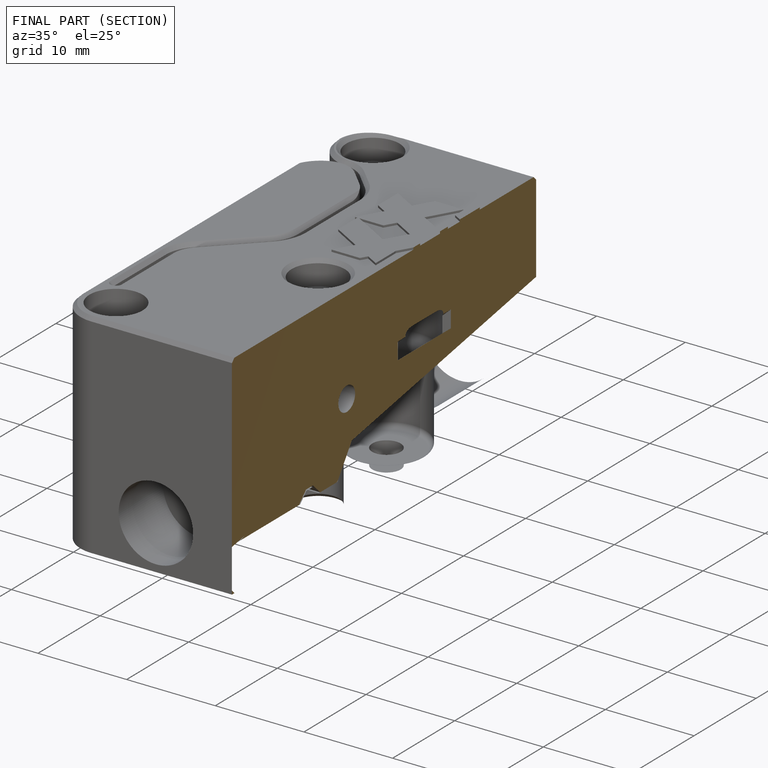
[diagram: finished part — half-section view (interior)]
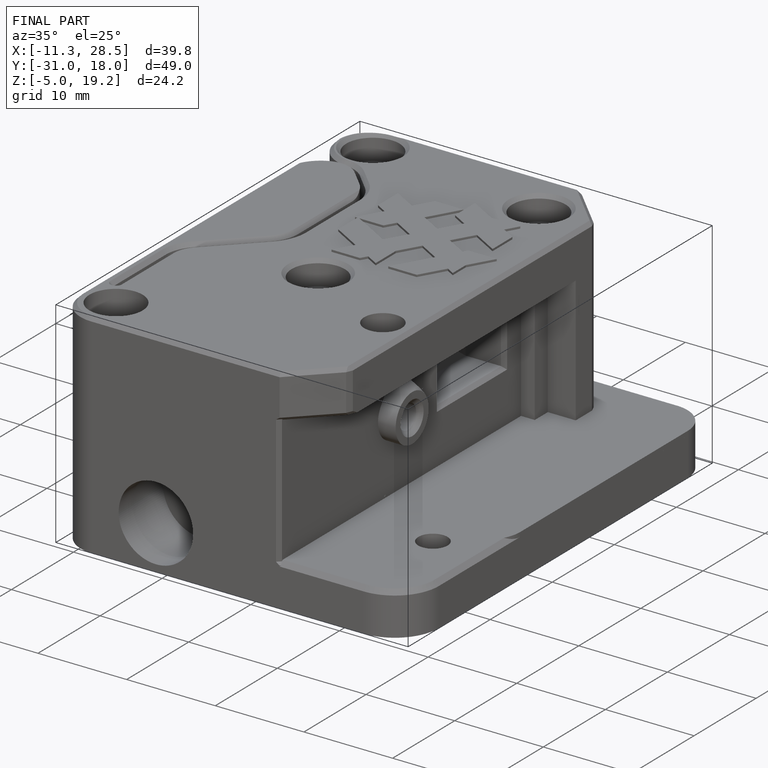
[diagram: finished part — iso view with bounding-box wireframe]
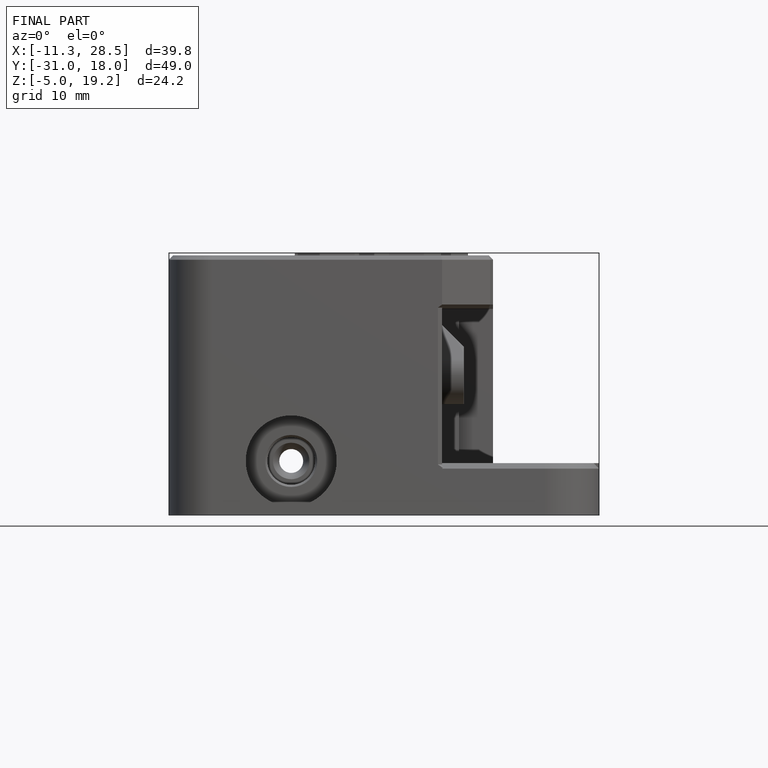
[diagram: finished part — front view with bounding-box wireframe]
